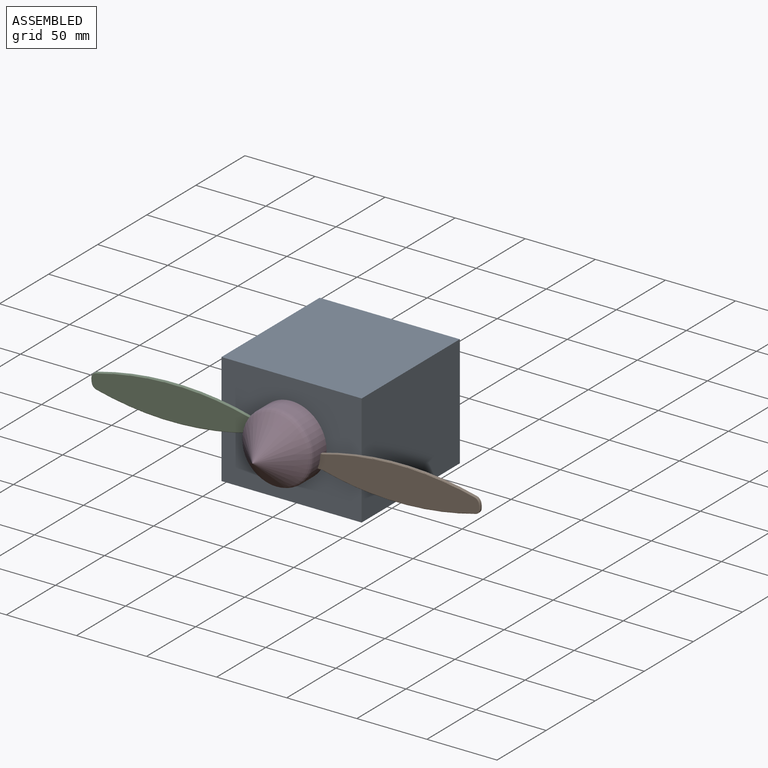
[diagram: assembled view]
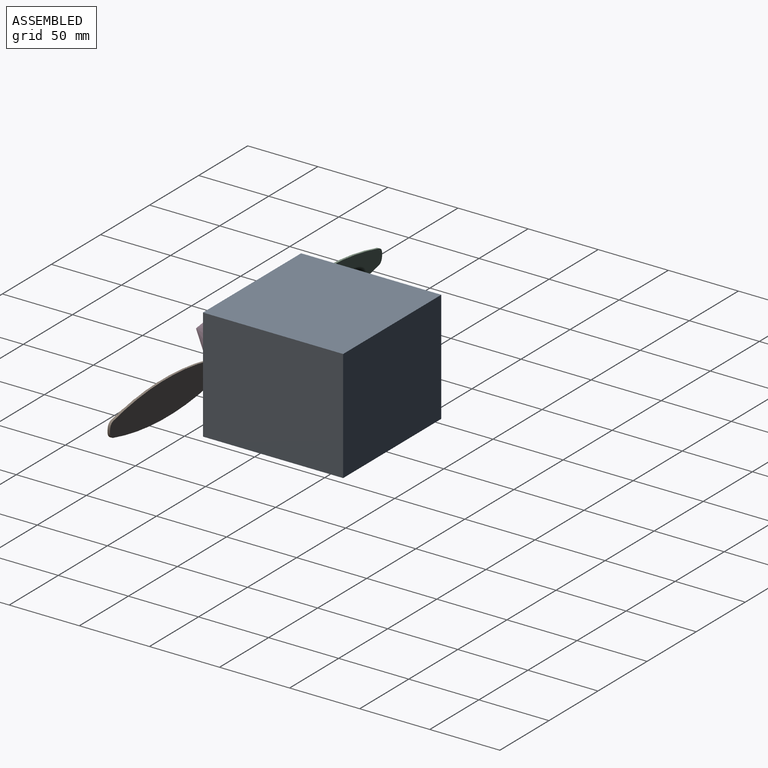
[diagram: assembled view, second angle]
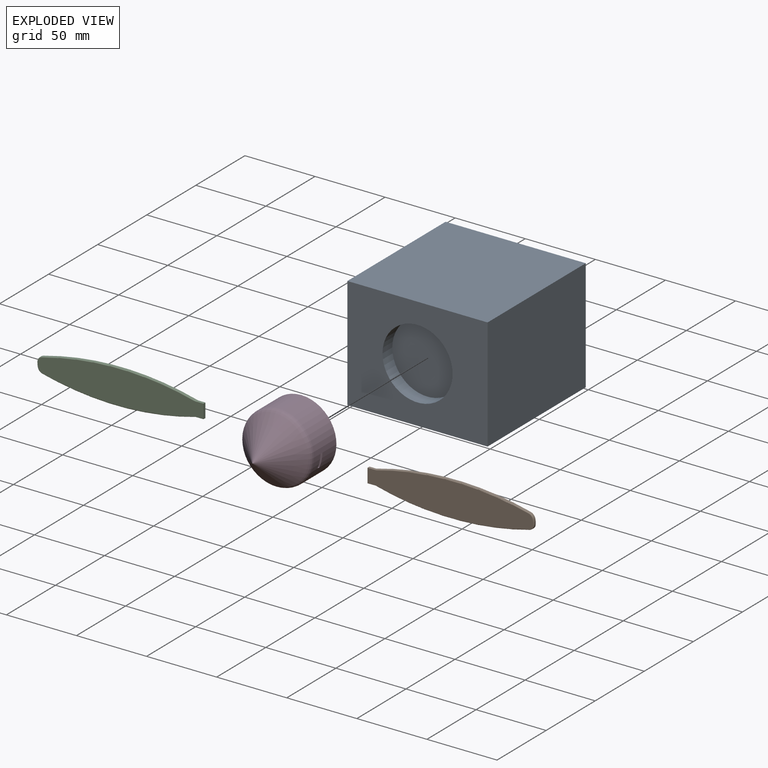
[diagram: exploded view]
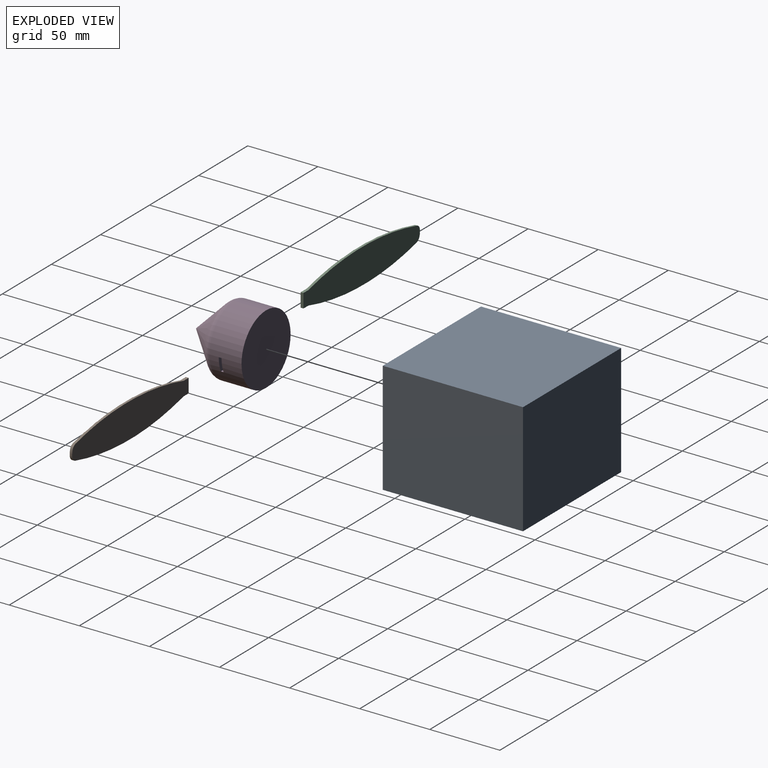
[diagram: exploded view, second angle]
ASSEMBLY  parts=4 mates=3
PART A: 8 faces, bbox 100x80x100 mm
  f0: plane 100x80mm, normal (-1,0,0), area 8000mm2, adj f1,f3,f4,f5
  f1: plane 100x80mm, normal (0,0,-1), area 8000mm2, adj f0,f2,f4,f5
  f2: plane 100x80mm, normal (1,0,0), area 8000mm2, adj f1,f3,f4,f5
  f3: plane 100x80mm, normal (0,0,1), area 6036.5mm2, adj f0,f2,f4,f5,f6
  f4: plane 100x100mm, normal (0,-1,0), area 10000mm2, adj f0,f1,f2,f3
  f5: plane 100x100mm, normal (0,1,0), area 10000mm2, adj f0,f1,f2,f3
  f6: cylinder r=25mm len=50mm, axis (0,0,1), area 1570.8mm2, adj f3,f7
  f7: plane 50x50mm, normal (0,0,1), area 1963.5mm2, adj f6
PART B: 17 faces, bbox 60.2x2x119.8 mm
  f0: plane 7.03x2mm, normal (1,0,0), area 10.3mm2, adj f2,f3,f4,f7,f12
  f1: plane 6.92x2mm, normal (-1,0,0), area 10.2mm2, adj f2,f3,f4,f6,f11
  f2: plane 10x2mm, normal (-0.01,0,-1), area 20mm2, adj f0,f1,f3,f4
  f3: plane 118.19x23.88mm, normal (0,-1,0), area 2177.5mm2, adj f0,f1,f2,f11,f12,f13,f14,f15
  f4: plane 118.69x24.88mm, normal (0,1,0), area 2294.6mm2, adj f0,f1,f2,f5,f6,f7,f8,f9
  f5: cylinder r=4.46mm len=3.44mm, axis (0,1,0), area 7.4mm2, adj f4,f6,f10,f13
  f6: cylinder r=214.41mm len=110.19mm, axis (0,1,0), area 167.2mm2, adj f1,f4,f5,f11
  f7: cylinder r=214.41mm len=110.19mm, axis (0,1,0), area 167.2mm2, adj f0,f4,f8,f12
  f8: cylinder r=4.62mm len=2.68mm, axis (0,1,0), area 4.9mm2, adj f4,f7,f9,f14
  f9: cylinder r=4.93mm len=3.09mm, axis (0,1,0), area 4.9mm2, adj f4,f8,f10,f16
  f10: cylinder r=11.39mm len=2.69mm, axis (0,1,0), area 4.1mm2, adj f4,f5,f9,f15
  f11: torus R=213.91mm, axis (0,-1,0), area 86.9mm2, adj f1,f3,f6,f13
  f12: torus R=213.91mm, axis (0,-1,0), area 86.9mm2, adj f0,f3,f7,f14
  f13: torus R=3.96mm, axis (0,-1,0), area 3.7mm2, adj f3,f5,f11,f15
  f14: torus R=4.12mm, axis (0,-1,0), area 2.5mm2, adj f3,f8,f12,f16
  f15: torus R=10.89mm, axis (0,-1,0), area 2.1mm2, adj f3,f10,f13,f16
  f16: torus R=4.43mm, axis (0,-1,0), area 2.4mm2, adj f3,f9,f14,f15
PART C: same geometry as B
PART D: 15 faces, bbox 54.1x50x54.1 mm
  f0: cylinder r=25mm len=50mm, axis (0,1,0), area 3561.9mm2, adj f1,f3,f4,f5,f6,f7,f10,f11
  f1: plane 50x50mm, normal (0,1,0), area 1963.5mm2, adj f0
  f2: cone r=25mm half-angle=45deg, axis (0,1,0), area 2461mm2, adj f3
  f3: torus R=20mm, axis (0,-1,0), area 604.6mm2, adj f0,f2
  f4: plane 10x5mm, normal (0,1,0), area 43.3mm2, adj f0,f5,f7,f8,f9
  f5: plane 2x0.72mm, normal (0,0,1), area 1.4mm2, adj f0,f4,f6,f9
  f6: plane 10x5mm, normal (0,-1,0), area 43.3mm2, adj f0,f5,f7,f8,f9
  f7: plane 2.92x2mm, normal (1,0,0), area 5.8mm2, adj f0,f4,f6,f8
  f8: plane 10x2mm, normal (0,0,-1), area 20mm2, adj f4,f6,f7,f9
  f9: plane 5x2mm, normal (-1,0,0), area 10mm2, adj f4,f5,f6,f8
  f10: plane 10x4.98mm, normal (0,-1,0), area 43mm2, adj f0,f12,f13,f14
  f11: plane 10x4.98mm, normal (0,1,0), area 43mm2, adj f0,f12,f13,f14
  f12: plane 2.9x2mm, normal (-1,0,0), area 5.8mm2, adj f0,f10,f11,f14
  f13: plane 4.98x2mm, normal (1,0,0), area 10mm2, adj f0,f10,f11,f14
  f14: plane 10x2mm, normal (0,0,1), area 20mm2, adj f10,f11,f12,f13
PLACE A rot(axis=(1,0,0),90deg) t=(52.8,115.13,103.81)mm
PLACE B rot(axis=(0,1,0),89.7deg) t=(121.56,10.88,58.8)mm
PLACE C rot(axis=(0,-1,0),90.3deg) t=(84.07,10.88,68.82)mm
PLACE D rot(axis=(0,1,0),90deg) t=(102.8,25.13,63.81)mm
MATE fastened C.f2 <-> D.f8  axis (1,0,0) through (82.81,9.88,68.81)mm
MATE fastened A.f6 <-> D.f0  axis (0,-1,0) through (102.8,25.13,63.81)mm
MATE fastened B.f2 <-> D.f14  axis (-1,0,0) through (122.82,9.88,58.81)mm
